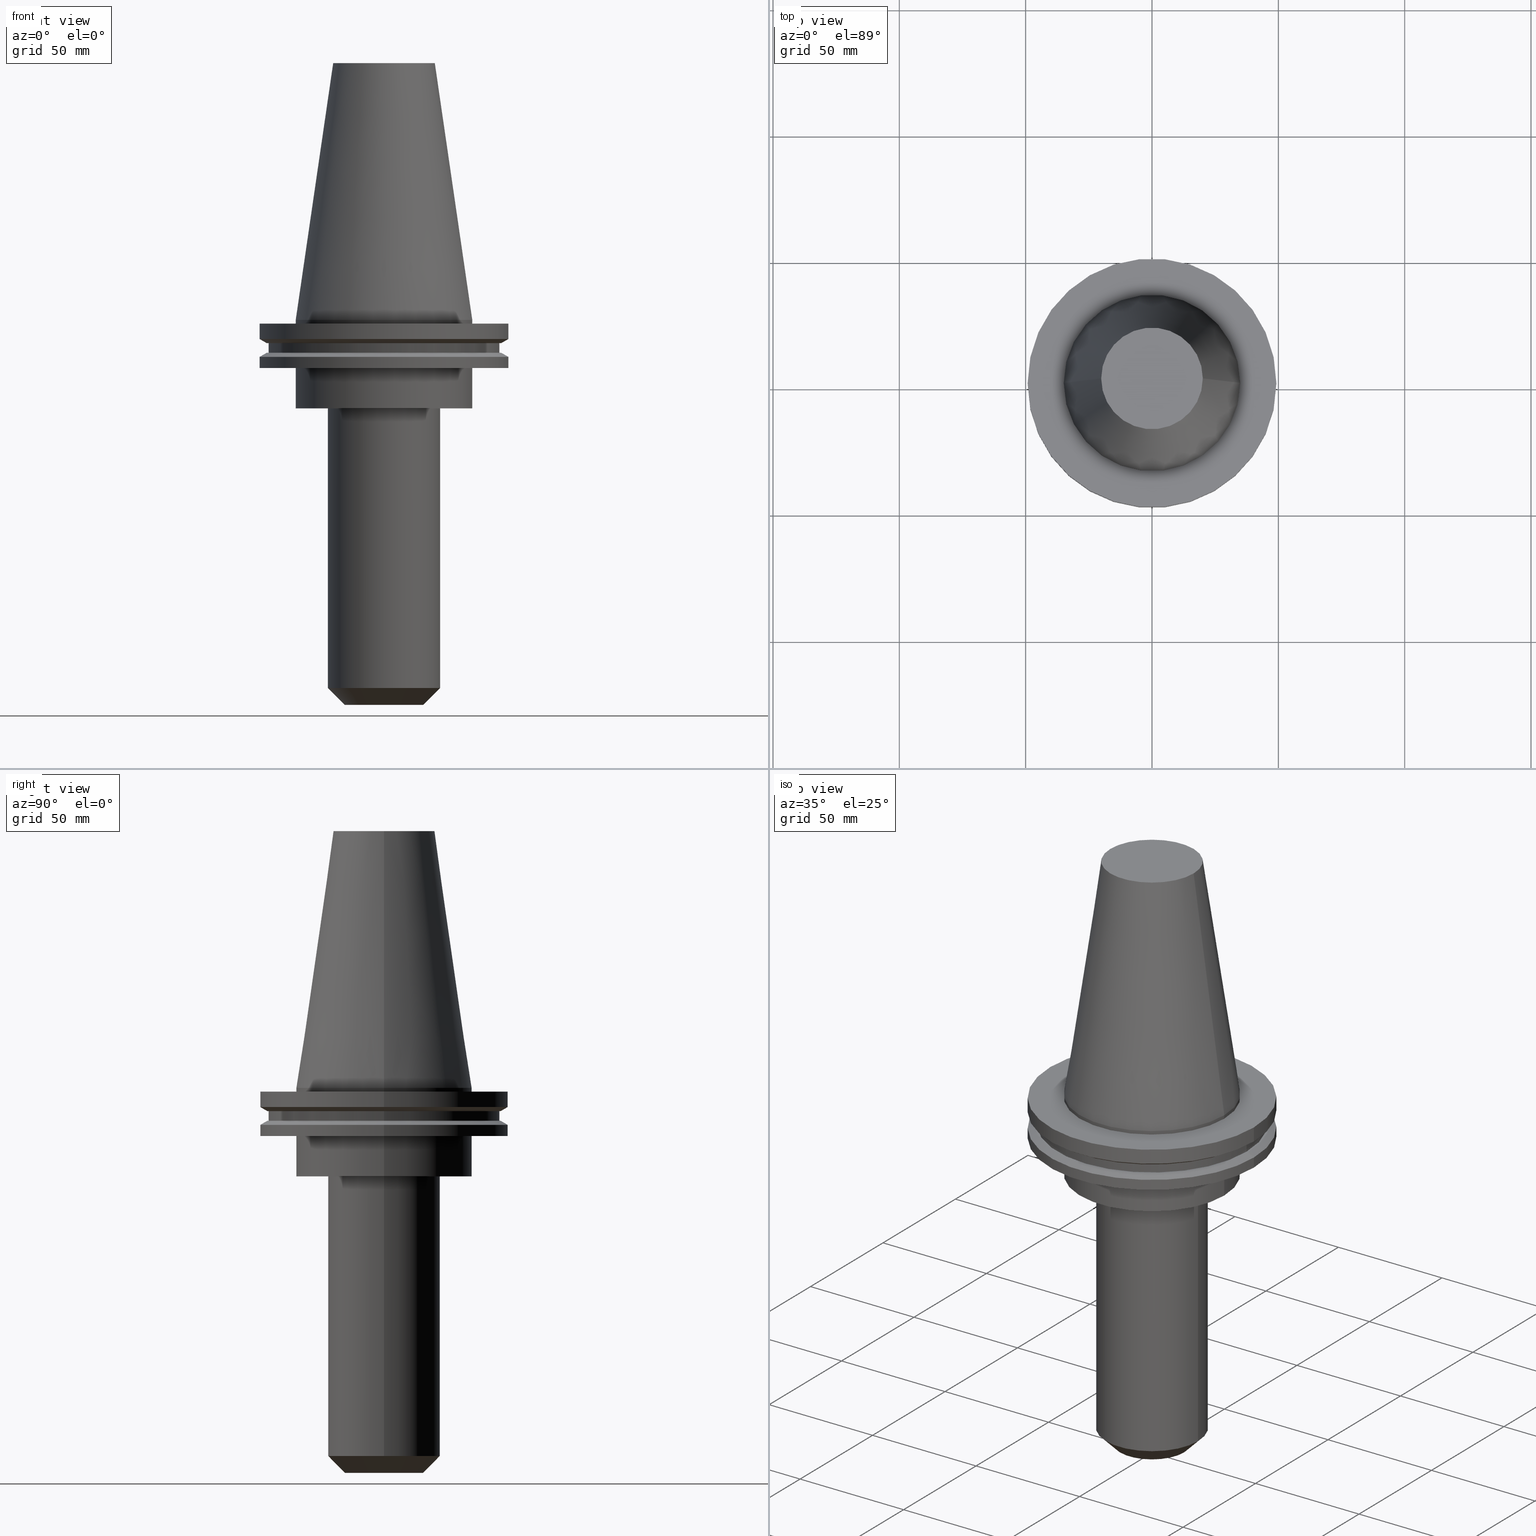
[diagram: canonical four-view strip — front | top / right | iso, engineering-drawing reading convention]
A machine part, canonical four-view strip (front | top / right | iso — engineering-drawing reading convention). The complete STEP part file that produces these views, byte-faithful:
ISO-10303-21;
HEADER;
FILE_DESCRIPTION (( 'STEP AP203' ),
    '1' );
FILE_NAME ('BCV50-EM_750-6.stp',
    '2022-03-03T16:45:13',
    ( '' ),
    ( '' ),
    'SwSTEP 2.0',
    'SolidWorks 2021',
    '' );
FILE_SCHEMA (( 'CONFIG_CONTROL_DESIGN' ));
ENDSEC;

DATA;
#1 = ORIENTED_EDGE ( 'NONE', *, *, #551, .T. ) ;
#2 = CC_DESIGN_PERSON_AND_ORGANIZATION_ASSIGNMENT ( #75, #481, ( #839 ) ) ;
#3 = CARTESIAN_POINT ( 'NONE',  ( 0.000000000000000000, 9.550000000000006040, -152.4000000000000057 ) ) ;
#4 = FACE_OUTER_BOUND ( 'NONE', #771, .T. ) ;
#5 = ORIENTED_EDGE ( 'NONE', *, *, #403, .F. ) ;
#6 = PLANE ( 'NONE',  #39 ) ;
#7 = APPROVAL_STATUS ( 'not_yet_approved' ) ;
#8 = DIRECTION ( 'NONE',  ( -0.000000000000000000, -0.000000000000000000, 1.000000000000000000 ) ) ;
#9 = ADVANCED_FACE ( 'NONE', ( #55 ), #345, .T. ) ;
#10 = AXIS2_PLACEMENT_3D ( 'NONE', #251, #737, #70 ) ;
#11 = CARTESIAN_POINT ( 'NONE',  ( 22.22500000000000497, 0.000000000000000000, -145.6999999999999318 ) ) ;
#12 = PERSON_AND_ORGANIZATION ( #175, #622 ) ;
#13 = CARTESIAN_POINT ( 'NONE',  ( 0.000000000000000000, 0.000000000000000000, -9.204999999999991189 ) ) ;
#14 = EDGE_CURVE ( 'NONE', #303, #104, #426, .T. ) ;
#15 = ORIENTED_EDGE ( 'NONE', *, *, #387, .T. ) ;
#16 = CARTESIAN_POINT ( 'NONE',  ( 45.64500000000000313, 0.000000000000000000, 101.5999999999999943 ) ) ;
#17 = DIRECTION ( 'NONE',  ( -0.000000000000000000, -0.000000000000000000, 1.000000000000000000 ) ) ;
#18 = ORIENTED_EDGE ( 'NONE', *, *, #34, .F. ) ;
#19 = CARTESIAN_POINT ( 'NONE',  ( 0.000000000000000000, 49.21499999999998920, -19.04999999999999716 ) ) ;
#20 = CARTESIAN_POINT ( 'NONE',  ( 0.000000000000000000, 0.000000000000000000, 0.000000000000000000 ) ) ;
#21 = VERTEX_POINT ( 'NONE', #142 ) ;
#22 = EDGE_CURVE ( 'NONE', #346, #312, #248, .T. ) ;
#23 = CIRCLE ( 'NONE', #825, 46.43919780457007818 ) ;
#24 = DIRECTION ( 'NONE',  ( 1.000000000000000000, 0.000000000000000000, 0.000000000000000000 ) ) ;
#25 = APPROVAL_DATE_TIME ( #206, #685 ) ;
#26 = DIRECTION ( 'NONE',  ( -0.000000000000000000, -0.000000000000000000, 1.000000000000000000 ) ) ;
#27 = AXIS2_PLACEMENT_3D ( 'NONE', #780, #720, #785 ) ;
#28 = EDGE_LOOP ( 'NONE', ( #653, #62, #287, #119 ) ) ;
#29 = DIRECTION ( 'NONE',  ( -0.000000000000000000, -0.000000000000000000, 1.000000000000000000 ) ) ;
#30 = CYLINDRICAL_SURFACE ( 'NONE', #133, 34.92499999999999716 ) ;
#31 = ORIENTED_EDGE ( 'NONE', *, *, #564, .F. ) ;
#32 = FACE_BOUND ( 'NONE', #92, .T. ) ;
#33 = LINE ( 'NONE', #840, #645 ) ;
#34 = EDGE_CURVE ( 'NONE', #21, #340, #405, .T. ) ;
#35 = ORIENTED_EDGE ( 'NONE', *, *, #445, .F. ) ;
#36 = VECTOR ( 'NONE', #606, 999.9999999999998863 ) ;
#37 = CIRCLE ( 'NONE', #520, 22.22500000000000497 ) ;
#38 = LINE ( 'NONE', #765, #309 ) ;
#39 = AXIS2_PLACEMENT_3D ( 'NONE', #3, #845, #734 ) ;
#40 = ORIENTED_EDGE ( 'NONE', *, *, #331, .T. ) ;
#41 = DIRECTION ( 'NONE',  ( -1.000000000000000000, 0.000000000000000000, -0.000000000000000000 ) ) ;
#42 = VERTEX_POINT ( 'NONE', #663 ) ;
#43 = ADVANCED_FACE ( 'NONE', ( #4 ), #255, .F. ) ;
#44 = FACE_OUTER_BOUND ( 'NONE', #315, .T. ) ;
#45 = EDGE_LOOP ( 'NONE', ( #573, #740 ) ) ;
#46 = ADVANCED_FACE ( 'NONE', ( #328 ), #671, .T. ) ;
#47 = CIRCLE ( 'NONE', #373, 20.10819343178871321 ) ;
#48 = DIRECTION ( 'NONE',  ( -0.000000000000000000, -0.000000000000000000, 1.000000000000000000 ) ) ;
#49 = ORIENTED_EDGE ( 'NONE', *, *, #827, .F. ) ;
#50 = CONICAL_SURFACE ( 'NONE', #580, 34.92499999999999005, 0.1448138465474119452 ) ;
#51 = DIRECTION ( 'NONE',  ( 1.000000000000000000, 0.000000000000000000, 0.000000000000000000 ) ) ;
#52 = ORIENTED_EDGE ( 'NONE', *, *, #102, .F. ) ;
#53 = CYLINDRICAL_SURFACE ( 'NONE', #364, 34.92499999999999716 ) ;
#54 = DIRECTION ( 'NONE',  ( -0.000000000000000000, -0.000000000000000000, 1.000000000000000000 ) ) ;
#55 = FACE_OUTER_BOUND ( 'NONE', #822, .T. ) ;
#56 = EDGE_CURVE ( 'NONE', #164, #71, #47, .T. ) ;
#57 = ORIENTED_EDGE ( 'NONE', *, *, #664, .T. ) ;
#58 = CARTESIAN_POINT ( 'NONE',  ( 0.000000000000000000, 0.000000000000000000, -13.05499999999999794 ) ) ;
#59 = VECTOR ( 'NONE', #128, 1000.000000000000000 ) ;
#60 = DIRECTION ( 'NONE',  ( -0.000000000000000000, -0.000000000000000000, 1.000000000000000000 ) ) ;
#61 = APPROVAL_PERSON_ORGANIZATION ( #269, #685, #755 ) ;
#62 = ORIENTED_EDGE ( 'NONE', *, *, #314, .T. ) ;
#63 = DIRECTION ( 'NONE',  ( 1.000000000000000000, 0.000000000000000000, 0.000000000000000000 ) ) ;
#64 = CARTESIAN_POINT ( 'NONE',  ( 0.000000000000000000, 0.000000000000000000, 0.000000000000000000 ) ) ;
#65 = DIRECTION ( 'NONE',  ( -1.000000000000000000, 0.000000000000000000, -0.000000000000000000 ) ) ;
#66 = ORIENTED_EDGE ( 'NONE', *, *, #240, .F. ) ;
#67 = ADVANCED_FACE ( 'NONE', ( #184, #532 ), #247, .F. ) ;
#68 = DIRECTION ( 'NONE',  ( 1.000000000000000000, 0.000000000000000000, 0.000000000000000000 ) ) ;
#69 = PERSON_AND_ORGANIZATION_ROLE ( 'design_owner' ) ;
#70 = DIRECTION ( 'NONE',  ( 1.000000000000000000, 0.000000000000000000, 0.000000000000000000 ) ) ;
#71 = VERTEX_POINT ( 'NONE', #381 ) ;
#72 = PRODUCT_DEFINITION_SHAPE ( 'NONE', 'NONE',  #769 ) ;
#73 = LINE ( 'NONE', #749, #783 ) ;
#74 = CC_DESIGN_PERSON_AND_ORGANIZATION_ASSIGNMENT ( #220, #562, ( #839 ) ) ;
#75 = PERSON_AND_ORGANIZATION ( #175, #622 ) ;
#76 = DIRECTION ( 'NONE',  ( -0.000000000000000000, -0.000000000000000000, 1.000000000000000000 ) ) ;
#77 = CIRCLE ( 'NONE', #673, 22.22499999999999432 ) ;
#78 = CIRCLE ( 'NONE', #483, 49.21499999999999631 ) ;
#79 = CIRCLE ( 'NONE', #230, 34.92499999999999716 ) ;
#80 = DIRECTION ( 'NONE',  ( -0.8660254037844273833, 1.060575238724893110E-16, 0.5000000000000195399 ) ) ;
#81 = DATE_AND_TIME ( #678, #348 ) ;
#82 = FACE_OUTER_BOUND ( 'NONE', #836, .T. ) ;
#83 = ORIENTED_EDGE ( 'NONE', *, *, #488, .F. ) ;
#84 = DIRECTION ( 'NONE',  ( 1.000000000000000000, 0.000000000000000000, 0.000000000000000000 ) ) ;
#85 = COORDINATED_UNIVERSAL_TIME_OFFSET ( 6, 0, .BEHIND. ) ;
#86 = CARTESIAN_POINT ( 'NONE',  ( -46.43919780457007818, 0.000000000000000000, -13.05499999999999794 ) ) ;
#87 = ORIENTED_EDGE ( 'NONE', *, *, #808, .T. ) ;
#88 = ADVANCED_FACE ( 'NONE', ( #528 ), #517, .T. ) ;
#89 = CARTESIAN_POINT ( 'NONE',  ( 22.22499999999999432, 0.000000000000000000, -35.04999999999999716 ) ) ;
#90 = COORDINATED_UNIVERSAL_TIME_OFFSET ( 6, 0, .BEHIND. ) ;
#91 = FACE_OUTER_BOUND ( 'NONE', #252, .T. ) ;
#92 = EDGE_LOOP ( 'NONE', ( #237, #437 ) ) ;
#93 = EDGE_CURVE ( 'NONE', #444, #477, #131, .T. ) ;
#94 = APPLICATION_CONTEXT ( 'configuration controlled 3d designs of mechanical parts and assemblies' ) ;
#95 = AXIS2_PLACEMENT_3D ( 'NONE', #795, #781, #325 ) ;
#96 = AXIS2_PLACEMENT_3D ( 'NONE', #566, #699, #823 ) ;
#97 = AXIS2_PLACEMENT_3D ( 'NONE', #768, #166, #41 ) ;
#98 = DIRECTION ( 'NONE',  ( -0.000000000000000000, -0.000000000000000000, 1.000000000000000000 ) ) ;
#99 = DIRECTION ( 'NONE',  ( -0.000000000000000000, -0.000000000000000000, 1.000000000000000000 ) ) ;
#100 = ORIENTED_EDGE ( 'NONE', *, *, #576, .F. ) ;
#101 = DIRECTION ( 'NONE',  ( 1.000000000000000000, 0.000000000000000000, 0.000000000000000000 ) ) ;
#102 = EDGE_CURVE ( 'NONE', #21, #710, #347, .T. ) ;
#103 = DIRECTION ( 'NONE',  ( 1.000000000000000000, 0.000000000000000000, 0.000000000000000000 ) ) ;
#104 = VERTEX_POINT ( 'NONE', #122 ) ;
#105 = CARTESIAN_POINT ( 'NONE',  ( 0.000000000000000000, 0.000000000000000000, -35.04999999999999716 ) ) ;
#106 = ORIENTED_EDGE ( 'NONE', *, *, #445, .T. ) ;
#107 = AXIS2_PLACEMENT_3D ( 'NONE', #844, #725, #65 ) ;
#108 = DIRECTION ( 'NONE',  ( 0.000000000000000000, 0.000000000000000000, -1.000000000000000000 ) ) ;
#109 = AXIS2_PLACEMENT_3D ( 'NONE', #111, #108, #293 ) ;
#110 = EDGE_LOOP ( 'NONE', ( #66, #706, #786, #568 ) ) ;
#111 = CARTESIAN_POINT ( 'NONE',  ( 0.000000000000000000, 0.000000000000000000, -14.65761014474876944 ) ) ;
#112 = VERTEX_POINT ( 'NONE', #467 ) ;
#113 = ADVANCED_FACE ( 'NONE', ( #590 ), #667, .T. ) ;
#114 = DIRECTION ( 'NONE',  ( -0.000000000000000000, -0.000000000000000000, 1.000000000000000000 ) ) ;
#115 = VERTEX_POINT ( 'NONE', #139 ) ;
#116 = CARTESIAN_POINT ( 'NONE',  ( -15.52499999999991154, 2.311520833390623949E-15, -152.4000000000000057 ) ) ;
#117 = CONICAL_SURFACE ( 'NONE', #733, 49.21499999999998920, 1.047197551196554333 ) ;
#118 = DIRECTION ( 'NONE',  ( -0.000000000000000000, -0.000000000000000000, 1.000000000000000000 ) ) ;
#119 = ORIENTED_EDGE ( 'NONE', *, *, #637, .T. ) ;
#120 = VECTOR ( 'NONE', #598, 1000.000000000000000 ) ;
#121 = DIRECTION ( 'NONE',  ( 0.000000000000000000, 0.000000000000000000, -1.000000000000000000 ) ) ;
#122 = CARTESIAN_POINT ( 'NONE',  ( 45.64500000000000313, 0.000000000000000000, -9.204999999999991189 ) ) ;
#123 = VERTEX_POINT ( 'NONE', #604 ) ;
#124 = DIRECTION ( 'NONE',  ( -0.000000000000000000, -0.000000000000000000, 1.000000000000000000 ) ) ;
#125 = CC_DESIGN_PERSON_AND_ORGANIZATION_ASSIGNMENT ( #683, #548, ( #582 ) ) ;
#126 = CARTESIAN_POINT ( 'NONE',  ( 0.000000000000000000, 0.000000000000000000, 0.000000000000000000 ) ) ;
#127 = ORIENTED_EDGE ( 'NONE', *, *, #718, .T. ) ;
#128 = DIRECTION ( 'NONE',  ( -0.000000000000000000, -0.000000000000000000, 1.000000000000000000 ) ) ;
#129 = VECTOR ( 'NONE', #646, 1000.000000000000000 ) ;
#130 = DIRECTION ( 'NONE',  ( 1.000000000000000000, 0.000000000000000000, 0.000000000000000000 ) ) ;
#131 = LINE ( 'NONE', #792, #620 ) ;
#132 = CIRCLE ( 'NONE', #570, 49.21499999999999631 ) ;
#133 = AXIS2_PLACEMENT_3D ( 'NONE', #207, #545, #689 ) ;
#134 = ORIENTED_EDGE ( 'NONE', *, *, #818, .F. ) ;
#135 = ADVANCED_FACE ( 'NONE', ( #265 ), #540, .T. ) ;
#136 = FACE_OUTER_BOUND ( 'NONE', #841, .T. ) ;
#137 = CARTESIAN_POINT ( 'NONE',  ( 0.000000000000000000, 0.000000000000000000, -19.04999999999999716 ) ) ;
#138 = UNCERTAINTY_MEASURE_WITH_UNIT (LENGTH_MEASURE( 1.000000000000000082E-05 ), #191, 'distance_accuracy_value', 'NONE');
#139 = CARTESIAN_POINT ( 'NONE',  ( 9.550000000000006040, 0.000000000000000000, -152.4000000000000057 ) ) ;
#140 = ORIENTED_EDGE ( 'NONE', *, *, #350, .F. ) ;
#141 = CARTESIAN_POINT ( 'NONE',  ( 0.000000000000000000, 0.000000000000000000, -35.04999999999999716 ) ) ;
#142 = CARTESIAN_POINT ( 'NONE',  ( -49.21499999999998920, 6.027099222003697037E-15, -19.04999999999999716 ) ) ;
#143 = VERTEX_POINT ( 'NONE', #354 ) ;
#144 = LINE ( 'NONE', #268, #36 ) ;
#145 = DIRECTION ( 'NONE',  ( -1.000000000000000000, 0.000000000000000000, 0.000000000000000000 ) ) ;
#146 = ORIENTED_EDGE ( 'NONE', *, *, #235, .T. ) ;
#147 = CIRCLE ( 'NONE', #633, 49.21499999999998920 ) ;
#148 = DIRECTION ( 'NONE',  ( -0.000000000000000000, -0.000000000000000000, 1.000000000000000000 ) ) ;
#149 = DIRECTION ( 'NONE',  ( -0.000000000000000000, -0.000000000000000000, 1.000000000000000000 ) ) ;
#150 = EDGE_CURVE ( 'NONE', #748, #406, #282, .T. ) ;
#151 = ORIENTED_EDGE ( 'NONE', *, *, #794, .T. ) ;
#152 = DIRECTION ( 'NONE',  ( -0.000000000000000000, -0.000000000000000000, 1.000000000000000000 ) ) ;
#153 = CALENDAR_DATE ( 2022, 3, 3 ) ;
#154 = FACE_OUTER_BOUND ( 'NONE', #110, .T. ) ;
#155 = EDGE_CURVE ( 'NONE', #696, #672, #559, .T. ) ;
#156 = ORIENTED_EDGE ( 'NONE', *, *, #488, .T. ) ;
#157 = DIRECTION ( 'NONE',  ( -0.000000000000000000, -0.000000000000000000, 1.000000000000000000 ) ) ;
#158 = CYLINDRICAL_SURFACE ( 'NONE', #228, 34.92499999999999005 ) ;
#159 = EDGE_LOOP ( 'NONE', ( #319, #397, #626, #355 ) ) ;
#160 = ADVANCED_FACE ( 'NONE', ( #751 ), #30, .T. ) ;
#161 = AXIS2_PLACEMENT_3D ( 'NONE', #820, #148, #415 ) ;
#162 = DIRECTION ( 'NONE',  ( -0.000000000000000000, -0.000000000000000000, 1.000000000000000000 ) ) ;
#163 = DIRECTION ( 'NONE',  ( -0.000000000000000000, -0.000000000000000000, 1.000000000000000000 ) ) ;
#164 = VERTEX_POINT ( 'NONE', #278 ) ;
#165 = ADVANCED_FACE ( 'NONE', ( #225 ), #492, .T. ) ;
#166 = DIRECTION ( 'NONE',  ( 0.000000000000000000, 0.000000000000000000, -1.000000000000000000 ) ) ;
#167 = VERTEX_POINT ( 'NONE', #86 ) ;
#168 = CARTESIAN_POINT ( 'NONE',  ( 0.000000000000000000, 0.000000000000000000, -7.602389855251287187 ) ) ;
#169 = ORIENTED_EDGE ( 'NONE', *, *, #245, .T. ) ;
#170 = AXIS2_PLACEMENT_3D ( 'NONE', #377, #254, #394 ) ;
#171 = DIRECTION ( 'NONE',  ( 1.000000000000000000, 0.000000000000000000, 0.000000000000000000 ) ) ;
#172 = ADVANCED_FACE ( 'NONE', ( #618, #811 ), #286, .F. ) ;
#173 = EDGE_LOOP ( 'NONE', ( #615, #194, #427, #5 ) ) ;
#174 = DIRECTION ( 'NONE',  ( -0.000000000000000000, -0.000000000000000000, 1.000000000000000000 ) ) ;
#175 = PERSON ( 'UNSPECIFIED', 'UNSPECIFIED', 'UNSPECIFIED', ('UNSPECIFIED'), ('UNSPECIFIED'), ('UNSPECIFIED') ) ;
#176 = ORIENTED_EDGE ( 'NONE', *, *, #541, .T. ) ;
#177 = DIRECTION ( 'NONE',  ( 1.000000000000000000, 0.000000000000000000, 0.000000000000000000 ) ) ;
#178 = ORIENTED_EDGE ( 'NONE', *, *, #827, .T. ) ;
#179 = ADVANCED_FACE ( 'NONE', ( #91 ), #117, .T. ) ;
#180 = AXIS2_PLACEMENT_3D ( 'NONE', #687, #98, #418 ) ;
#181 = CARTESIAN_POINT ( 'NONE',  ( -34.92499999999999716, 4.277078946022130887E-15, -19.04999999999999716 ) ) ;
#182 = VECTOR ( 'NONE', #367, 1000.000000000000000 ) ;
#183 = CARTESIAN_POINT ( 'NONE',  ( 0.000000000000000000, 0.000000000000000000, 0.000000000000000000 ) ) ;
#184 = FACE_OUTER_BOUND ( 'NONE', #213, .T. ) ;
#185 = AXIS2_PLACEMENT_3D ( 'NONE', #216, #152, #692 ) ;
#186 = AXIS2_PLACEMENT_3D ( 'NONE', #601, #262, #379 ) ;
#187 = DIRECTION ( 'NONE',  ( 1.000000000000000000, 0.000000000000000000, 0.000000000000000000 ) ) ;
#188 = DIRECTION ( 'NONE',  ( 1.000000000000000000, 0.000000000000000000, 0.000000000000000000 ) ) ;
#189 = ORIENTED_EDGE ( 'NONE', *, *, #474, .F. ) ;
#190 = DIRECTION ( 'NONE',  ( 1.000000000000000000, 0.000000000000000000, 0.000000000000000000 ) ) ;
#191 =( LENGTH_UNIT ( ) NAMED_UNIT ( * ) SI_UNIT ( .MILLI., .METRE. ) );
#192 = DIRECTION ( 'NONE',  ( 1.000000000000000000, 0.000000000000000000, 0.000000000000000000 ) ) ;
#193 = EDGE_CURVE ( 'NONE', #632, #223, #349, .T. ) ;
#194 = ORIENTED_EDGE ( 'NONE', *, *, #22, .T. ) ;
#195 = CARTESIAN_POINT ( 'NONE',  ( 9.550000000000000711, 0.000000000000000000, 0.000000000000000000 ) ) ;
#196 = DIRECTION ( 'NONE',  ( 1.000000000000000000, 0.000000000000000000, 0.000000000000000000 ) ) ;
#197 = CC_DESIGN_DATE_AND_TIME_ASSIGNMENT ( #353, #424, ( #769 ) ) ;
#198 = LOCAL_TIME ( 10, 45, 13.00000000000000000, #810 ) ;
#199 = EDGE_LOOP ( 'NONE', ( #703, #232, #368, #244 ) ) ;
#200 = CIRCLE ( 'NONE', #450, 20.10819343178871321 ) ;
#201 = CARTESIAN_POINT ( 'NONE',  ( 46.43919780457007818, 0.000000000000000000, -9.204999999999991189 ) ) ;
#202 = COORDINATED_UNIVERSAL_TIME_OFFSET ( 6, 0, .BEHIND. ) ;
#203 = VERTEX_POINT ( 'NONE', #275 ) ;
#204 = EDGE_LOOP ( 'NONE', ( #178, #218, #608, #649 ) ) ;
#205 = DIRECTION ( 'NONE',  ( 0.7071067811865489050, 0.000000000000000000, 0.7071067811865462405 ) ) ;
#206 = DATE_AND_TIME ( #617, #198 ) ;
#207 = CARTESIAN_POINT ( 'NONE',  ( 0.000000000000000000, 0.000000000000000000, 101.5999999999999943 ) ) ;
#208 = ORIENTED_EDGE ( 'NONE', *, *, #34, .T. ) ;
#209 = ADVANCED_FACE ( 'NONE', ( #154 ), #158, .T. ) ;
#210 = CARTESIAN_POINT ( 'NONE',  ( 0.000000000000000000, 0.000000000000000000, -1.499999999999987566 ) ) ;
#211 = CARTESIAN_POINT ( 'NONE',  ( 34.92499999999999005, 0.000000000000000000, 101.5999999999999943 ) ) ;
#212 = CONICAL_SURFACE ( 'NONE', #109, 49.21499999999998920, 1.047197551196554333 ) ;
#213 = EDGE_LOOP ( 'NONE', ( #753, #300 ) ) ;
#214 = AXIS2_PLACEMENT_3D ( 'NONE', #700, #747, #614 ) ;
#215 = AXIS2_PLACEMENT_3D ( 'NONE', #584, #530, #187 ) ;
#216 = CARTESIAN_POINT ( 'NONE',  ( 0.000000000000000000, 0.000000000000000000, -19.04999999999999716 ) ) ;
#217 = DIRECTION ( 'NONE',  ( -0.000000000000000000, -0.000000000000000000, 1.000000000000000000 ) ) ;
#218 = ORIENTED_EDGE ( 'NONE', *, *, #834, .T. ) ;
#219 = FACE_OUTER_BOUND ( 'NONE', #496, .T. ) ;
#220 = PERSON_AND_ORGANIZATION ( #175, #622 ) ;
#221 = LINE ( 'NONE', #756, #363 ) ;
#222 = EDGE_CURVE ( 'NONE', #112, #583, #554, .T. ) ;
#223 = VERTEX_POINT ( 'NONE', #814 ) ;
#224 = DIRECTION ( 'NONE',  ( -0.000000000000000000, -0.000000000000000000, 1.000000000000000000 ) ) ;
#225 = FACE_OUTER_BOUND ( 'NONE', #28, .T. ) ;
#226 = ORIENTED_EDGE ( 'NONE', *, *, #596, .F. ) ;
#227 = CC_DESIGN_PERSON_AND_ORGANIZATION_ASSIGNMENT ( #400, #69, ( #655 ) ) ;
#228 = AXIS2_PLACEMENT_3D ( 'NONE', #495, #26, #743 ) ;
#229 = CIRCLE ( 'NONE', #161, 9.550000000000006040 ) ;
#230 = AXIS2_PLACEMENT_3D ( 'NONE', #656, #665, #63 ) ;
#231 = DIRECTION ( 'NONE',  ( -0.000000000000000000, -0.000000000000000000, 1.000000000000000000 ) ) ;
#232 = ORIENTED_EDGE ( 'NONE', *, *, #222, .T. ) ;
#233 = CARTESIAN_POINT ( 'NONE',  ( 49.21499999999999631, 0.000000000000000000, -1.499999999999987566 ) ) ;
#234 = ORIENTED_EDGE ( 'NONE', *, *, #680, .F. ) ;
#235 = EDGE_CURVE ( 'NONE', #115, #444, #439, .T. ) ;
#236 = CARTESIAN_POINT ( 'NONE',  ( 0.000000000000000000, 0.000000000000000000, 101.5999999999999943 ) ) ;
#237 = ORIENTED_EDGE ( 'NONE', *, *, #637, .F. ) ;
#238 = APPROVAL_PERSON_ORGANIZATION ( #12, #336, #274 ) ;
#239 = DIRECTION ( 'NONE',  ( 1.000000000000000000, 0.000000000000000000, 0.000000000000000000 ) ) ;
#240 = EDGE_CURVE ( 'NONE', #632, #748, #221, .T. ) ;
#241 = ORIENTED_EDGE ( 'NONE', *, *, #705, .T. ) ;
#242 = VECTOR ( 'NONE', #713, 1000.000000000000000 ) ;
#243 = CARTESIAN_POINT ( 'NONE',  ( 46.43919780457007818, 0.000000000000000000, -9.204999999999991189 ) ) ;
#244 = ORIENTED_EDGE ( 'NONE', *, *, #433, .F. ) ;
#245 = EDGE_CURVE ( 'NONE', #406, #748, #643, .T. ) ;
#246 = CARTESIAN_POINT ( 'NONE',  ( 0.000000000000000000, 0.000000000000000000, -152.4000000000000057 ) ) ;
#247 = PLANE ( 'NONE',  #95 ) ;
#248 = CIRCLE ( 'NONE', #390, 46.43919780457007818 ) ;
#249 = CARTESIAN_POINT ( 'NONE',  ( 0.000000000000000000, 0.000000000000000000, 101.5999999999999943 ) ) ;
#250 = DIRECTION ( 'NONE',  ( 1.000000000000000000, 0.000000000000000000, 0.000000000000000000 ) ) ;
#251 = CARTESIAN_POINT ( 'NONE',  ( 0.000000000000000000, 0.000000000000000000, 101.5999999999999943 ) ) ;
#252 = EDGE_LOOP ( 'NONE', ( #441, #414, #654, #534 ) ) ;
#253 = PLANE ( 'NONE',  #846 ) ;
#254 = DIRECTION ( 'NONE',  ( -0.000000000000000000, -0.000000000000000000, 1.000000000000000000 ) ) ;
#255 = PLANE ( 'NONE',  #107 ) ;
#256 = ORIENTED_EDGE ( 'NONE', *, *, #511, .T. ) ;
#257 = CARTESIAN_POINT ( 'NONE',  ( 0.000000000000000000, 0.000000000000000000, -35.04999999999999716 ) ) ;
#258 = EDGE_CURVE ( 'NONE', #223, #406, #760, .T. ) ;
#259 = DIRECTION ( 'NONE',  ( -0.000000000000000000, -0.000000000000000000, 1.000000000000000000 ) ) ;
#260 = CARTESIAN_POINT ( 'NONE',  ( 0.000000000000000000, 0.000000000000000000, -9.204999999999991189 ) ) ;
#261 = VERTEX_POINT ( 'NONE', #821 ) ;
#262 = DIRECTION ( 'NONE',  ( -0.000000000000000000, -0.000000000000000000, 1.000000000000000000 ) ) ;
#263 = AXIS2_PLACEMENT_3D ( 'NONE', #126, #321, #461 ) ;
#264 = APPROVAL_ROLE ( '' ) ;
#265 = FACE_OUTER_BOUND ( 'NONE', #294, .T. ) ;
#266 = AXIS2_PLACEMENT_3D ( 'NONE', #557, #407, #742 ) ;
#267 = ORIENTED_EDGE ( 'NONE', *, *, #698, .T. ) ;
#268 = CARTESIAN_POINT ( 'NONE',  ( -34.92499999999999005, 0.000000000000000000, 0.000000000000000000 ) ) ;
#269 = PERSON_AND_ORGANIZATION ( #175, #622 ) ;
#270 = DIRECTION ( 'NONE',  ( 1.000000000000000000, 0.000000000000000000, 0.000000000000000000 ) ) ;
#271 = ORIENTED_EDGE ( 'NONE', *, *, #14, .F. ) ;
#272 = EDGE_CURVE ( 'NONE', #583, #372, #78, .T. ) ;
#273 = DIRECTION ( 'NONE',  ( -0.000000000000000000, -0.000000000000000000, 1.000000000000000000 ) ) ;
#274 = APPROVAL_ROLE ( '' ) ;
#275 = CARTESIAN_POINT ( 'NONE',  ( 49.21500000000000341, 0.000000000000000000, -7.602389855251287187 ) ) ;
#276 = ORIENTED_EDGE ( 'NONE', *, *, #56, .T. ) ;
#277 = DIRECTION ( 'NONE',  ( 0.000000000000000000, -0.000000000000000000, 1.000000000000000000 ) ) ;
#278 = CARTESIAN_POINT ( 'NONE',  ( 20.10819343178871321, 3.369811209154858606E-15, 101.5999999999999801 ) ) ;
#279 = CIRCLE ( 'NONE', #717, 22.22499999999999432 ) ;
#280 = EDGE_LOOP ( 'NONE', ( #49, #504 ) ) ;
#281 = CIRCLE ( 'NONE', #498, 45.64500000000000313 ) ;
#282 = CIRCLE ( 'NONE', #497, 34.92499999999999005 ) ;
#283 = CARTESIAN_POINT ( 'NONE',  ( 15.52499999999991154, 0.000000000000000000, -152.4000000000000057 ) ) ;
#284 = AXIS2_PLACEMENT_3D ( 'NONE', #453, #324, #651 ) ;
#285 = ADVANCED_FACE ( 'NONE', ( #82 ), #674, .T. ) ;
#286 = PLANE ( 'NONE',  #579 ) ;
#287 = ORIENTED_EDGE ( 'NONE', *, *, #155, .T. ) ;
#288 = DIRECTION ( 'NONE',  ( 1.000000000000000000, 0.000000000000000000, 0.000000000000000000 ) ) ;
#289 = PERSON_AND_ORGANIZATION_ROLE ( 'creator' ) ;
#290 = DIRECTION ( 'NONE',  ( 1.000000000000000000, 0.000000000000000000, 0.000000000000000000 ) ) ;
#291 = ORIENTED_EDGE ( 'NONE', *, *, #758, .T. ) ;
#292 = FACE_OUTER_BOUND ( 'NONE', #778, .T. ) ;
#293 = DIRECTION ( 'NONE',  ( -1.000000000000000000, 0.000000000000000000, 0.000000000000000000 ) ) ;
#294 = EDGE_LOOP ( 'NONE', ( #337, #636, #738, #489 ) ) ;
#295 = VECTOR ( 'NONE', #809, 1000.000000000000000 ) ;
#296 = VECTOR ( 'NONE', #487, 1000.000000000000000 ) ;
#297 = AXIS2_PLACEMENT_3D ( 'NONE', #813, #157, #739 ) ;
#298 = CIRCLE ( 'NONE', #180, 34.92499999999999005 ) ;
#299 = FACE_OUTER_BOUND ( 'NONE', #199, .T. ) ;
#300 = ORIENTED_EDGE ( 'NONE', *, *, #22, .F. ) ;
#301 = EDGE_CURVE ( 'NONE', #787, #812, #704, .T. ) ;
#302 = CARTESIAN_POINT ( 'NONE',  ( 0.000000000000000000, 0.000000000000000000, -145.6999999999999318 ) ) ;
#303 = VERTEX_POINT ( 'NONE', #824 ) ;
#304 = APPROVAL ( #7, 'UNSPECIFIED' ) ;
#305 = CARTESIAN_POINT ( 'NONE',  ( 34.92499999999999005, 4.277078946022130098E-15, 0.000000000000000000 ) ) ;
#306 = ORIENTED_EDGE ( 'NONE', *, *, #499, .T. ) ;
#307 = AXIS2_PLACEMENT_3D ( 'NONE', #482, #625, #684 ) ;
#308 = CIRCLE ( 'NONE', #170, 15.52499999999991154 ) ;
#309 = VECTOR ( 'NONE', #628, 1000.000000000000000 ) ;
#310 = LINE ( 'NONE', #712, #465 ) ;
#311 = EDGE_CURVE ( 'NONE', #525, #167, #849, .T. ) ;
#312 = VERTEX_POINT ( 'NONE', #243 ) ;
#313 = FACE_OUTER_BOUND ( 'NONE', #708, .T. ) ;
#314 = EDGE_CURVE ( 'NONE', #796, #696, #37, .T. ) ;
#315 = EDGE_LOOP ( 'NONE', ( #291, #722 ) ) ;
#316 = CARTESIAN_POINT ( 'NONE',  ( 46.43919780457007818, 5.857130358318725715E-15, -13.05499999999999794 ) ) ;
#317 = DIRECTION ( 'NONE',  ( 1.000000000000000000, 0.000000000000000000, 0.000000000000000000 ) ) ;
#318 = CARTESIAN_POINT ( 'NONE',  ( 0.000000000000000000, 0.000000000000000000, 101.5999999999999943 ) ) ;
#319 = ORIENTED_EDGE ( 'NONE', *, *, #602, .T. ) ;
#320 = LINE ( 'NONE', #195, #389 ) ;
#321 = DIRECTION ( 'NONE',  ( 0.000000000000000000, 0.000000000000000000, -1.000000000000000000 ) ) ;
#322 = EDGE_CURVE ( 'NONE', #366, #340, #147, .T. ) ;
#323 = DIRECTION ( 'NONE',  ( 1.000000000000000000, 0.000000000000000000, 0.000000000000000000 ) ) ;
#324 = DIRECTION ( 'NONE',  ( -0.000000000000000000, -0.000000000000000000, 1.000000000000000000 ) ) ;
#325 = DIRECTION ( 'NONE',  ( 1.000000000000000000, 0.000000000000000000, 0.000000000000000000 ) ) ;
#326 = VERTEX_POINT ( 'NONE', #828 ) ;
#327 = DIRECTION ( 'NONE',  ( -0.000000000000000000, -0.000000000000000000, 1.000000000000000000 ) ) ;
#328 = FACE_OUTER_BOUND ( 'NONE', #763, .T. ) ;
#329 = DIRECTION ( 'NONE',  ( -0.000000000000000000, -0.000000000000000000, 1.000000000000000000 ) ) ;
#330 = DIRECTION ( 'NONE',  ( 1.000000000000000000, 0.000000000000000000, 0.000000000000000000 ) ) ;
#331 = EDGE_CURVE ( 'NONE', #477, #261, #592, .T. ) ;
#332 = AXIS2_PLACEMENT_3D ( 'NONE', #791, #118, #317 ) ;
#333 = CONICAL_SURFACE ( 'NONE', #659, 15.52499999999991154, 0.7853981633974502774 ) ;
#334 = CYLINDRICAL_SURFACE ( 'NONE', #521, 22.22499999999999432 ) ;
#335 = DIRECTION ( 'NONE',  ( -0.000000000000000000, -0.000000000000000000, 1.000000000000000000 ) ) ;
#336 = APPROVAL ( #419, 'UNSPECIFIED' ) ;
#337 = ORIENTED_EDGE ( 'NONE', *, *, #222, .F. ) ;
#338 = FACE_BOUND ( 'NONE', #775, .T. ) ;
#339 = DIRECTION ( 'NONE',  ( 0.000000000000000000, 0.000000000000000000, -1.000000000000000000 ) ) ;
#340 = VERTEX_POINT ( 'NONE', #581 ) ;
#341 = ADVANCED_FACE ( 'NONE', ( #500 ), #50, .T. ) ;
#342 = CARTESIAN_POINT ( 'NONE',  ( 0.000000000000000000, 0.000000000000000000, 0.000000000000000000 ) ) ;
#343 = DATE_TIME_ROLE ( 'classification_date' ) ;
#344 = DIRECTION ( 'NONE',  ( -1.000000000000000000, 0.000000000000000000, -0.000000000000000000 ) ) ;
#345 = CONICAL_SURFACE ( 'NONE', #263, 34.92499999999999005, 0.1448138465474119452 ) ;
#346 = VERTEX_POINT ( 'NONE', #833 ) ;
#347 = CIRCLE ( 'NONE', #509, 49.21499999999998920 ) ;
#348 = LOCAL_TIME ( 10, 45, 13.00000000000000000, #90 ) ;
#349 = CIRCLE ( 'NONE', #214, 34.92499999999999005 ) ;
#350 = EDGE_CURVE ( 'NONE', #164, #406, #33, .T. ) ;
#351 = FACE_OUTER_BOUND ( 'NONE', #832, .T. ) ;
#352 = LOCAL_TIME ( 10, 45, 13.00000000000000000, #447 ) ;
#353 = DATE_AND_TIME ( #153, #732 ) ;
#354 = CARTESIAN_POINT ( 'NONE',  ( -22.22499999999999432, 2.721777511104992060E-15, -35.04999999999999716 ) ) ;
#355 = ORIENTED_EDGE ( 'NONE', *, *, #258, .F. ) ;
#356 = CARTESIAN_POINT ( 'NONE',  ( 34.92499999999999716, 0.000000000000000000, -35.04999999999999716 ) ) ;
#357 = CARTESIAN_POINT ( 'NONE',  ( 49.21499999999998920, 0.000000000000000000, -14.65761014474876944 ) ) ;
#358 = ORIENTED_EDGE ( 'NONE', *, *, #301, .T. ) ;
#359 = CARTESIAN_POINT ( 'NONE',  ( 49.21499999999998920, 6.027099222003697037E-15, -14.65761014474876944 ) ) ;
#360 = EDGE_CURVE ( 'NONE', #167, #340, #310, .T. ) ;
#361 = EDGE_LOOP ( 'NONE', ( #31, #512 ) ) ;
#362 = AXIS2_PLACEMENT_3D ( 'NONE', #257, #587, #793 ) ;
#363 = VECTOR ( 'NONE', #420, 1000.000000000000000 ) ;
#364 = AXIS2_PLACEMENT_3D ( 'NONE', #249, #376, #323 ) ;
#365 = FACE_BOUND ( 'NONE', #280, .T. ) ;
#366 = VERTEX_POINT ( 'NONE', #357 ) ;
#367 = DIRECTION ( 'NONE',  ( -0.000000000000000000, -0.000000000000000000, 1.000000000000000000 ) ) ;
#368 = ORIENTED_EDGE ( 'NONE', *, *, #691, .F. ) ;
#369 = ADVANCED_BREP_SHAPE_REPRESENTATION ( 'BCV50-EM_750-6', ( #790, #736 ), #392 ) ;
#370 = ADVANCED_FACE ( 'NONE', ( #365, #44 ), #635, .F. ) ;
#371 = CARTESIAN_POINT ( 'NONE',  ( -9.550000000000004263, 1.169537693185723150E-15, -152.4000000000000057 ) ) ;
#372 = VERTEX_POINT ( 'NONE', #233 ) ;
#373 = AXIS2_PLACEMENT_3D ( 'NONE', #855, #728, #330 ) ;
#374 = EDGE_CURVE ( 'NONE', #525, #366, #702, .T. ) ;
#375 = AXIS2_PLACEMENT_3D ( 'NONE', #759, #162, #101 ) ;
#376 = DIRECTION ( 'NONE',  ( -0.000000000000000000, -0.000000000000000000, 1.000000000000000000 ) ) ;
#377 = CARTESIAN_POINT ( 'NONE',  ( 0.000000000000000000, 0.000000000000000000, -152.4000000000000057 ) ) ;
#378 = ORIENTED_EDGE ( 'NONE', *, *, #564, .T. ) ;
#379 = DIRECTION ( 'NONE',  ( 1.000000000000000000, 0.000000000000000000, 0.000000000000000000 ) ) ;
#380 = DIRECTION ( 'NONE',  ( 0.000000000000000000, 0.000000000000000000, 1.000000000000000000 ) ) ;
#381 = CARTESIAN_POINT ( 'NONE',  ( -20.10819343178871321, 0.000000000000000000, 101.5999999999999801 ) ) ;
#382 = ORIENTED_EDGE ( 'NONE', *, *, #624, .T. ) ;
#383 = APPLICATION_CONTEXT ( 'configuration controlled 3d designs of mechanical parts and assemblies' ) ;
#384 = FACE_OUTER_BOUND ( 'NONE', #546, .T. ) ;
#385 =( NAMED_UNIT ( * ) PLANE_ANGLE_UNIT ( ) SI_UNIT ( $, .RADIAN. ) );
#386 = CARTESIAN_POINT ( 'NONE',  ( 0.000000000000000000, 0.000000000000000000, 101.5999999999999943 ) ) ;
#387 = EDGE_CURVE ( 'NONE', #796, #143, #38, .T. ) ;
#388 = ORIENTED_EDGE ( 'NONE', *, *, #193, .F. ) ;
#389 = VECTOR ( 'NONE', #593, 1000.000000000000000 ) ;
#390 = AXIS2_PLACEMENT_3D ( 'NONE', #260, #454, #594 ) ;
#391 = DIRECTION ( 'NONE',  ( 1.000000000000000000, 0.000000000000000000, 0.000000000000000000 ) ) ;
#392 =( GEOMETRIC_REPRESENTATION_CONTEXT ( 3 ) GLOBAL_UNCERTAINTY_ASSIGNED_CONTEXT ( ( #138 ) ) GLOBAL_UNIT_ASSIGNED_CONTEXT ( ( #191, #385, #657 ) ) REPRESENTATION_CONTEXT ( 'NONE', 'WORKASPACE' ) );
#393 = AXIS2_PLACEMENT_3D ( 'NONE', #318, #60, #192 ) ;
#394 = DIRECTION ( 'NONE',  ( 1.000000000000000000, 0.000000000000000000, 0.000000000000000000 ) ) ;
#395 = CARTESIAN_POINT ( 'NONE',  ( 0.000000000000000000, 0.000000000000000000, -19.04999999999999716 ) ) ;
#396 = CC_DESIGN_SECURITY_CLASSIFICATION ( #582, ( #839 ) ) ;
#397 = ORIENTED_EDGE ( 'NONE', *, *, #240, .T. ) ;
#398 = CIRCLE ( 'NONE', #27, 34.92499999999999716 ) ;
#399 = FACE_BOUND ( 'NONE', #721, .T. ) ;
#400 = PERSON_AND_ORGANIZATION ( #175, #622 ) ;
#401 = DIRECTION ( 'NONE',  ( 1.000000000000000000, 0.000000000000000000, 0.000000000000000000 ) ) ;
#402 = EDGE_LOOP ( 'NONE', ( #529, #681, #850, #417 ) ) ;
#403 = EDGE_CURVE ( 'NONE', #112, #203, #798, .T. ) ;
#404 = CARTESIAN_POINT ( 'NONE',  ( 49.21499999999998920, 0.000000000000000000, -19.04999999999999716 ) ) ;
#405 = LINE ( 'NONE', #524, #480 ) ;
#406 = VERTEX_POINT ( 'NONE', #305 ) ;
#407 = DIRECTION ( 'NONE',  ( -0.000000000000000000, -0.000000000000000000, 1.000000000000000000 ) ) ;
#408 = AXIS2_PLACEMENT_3D ( 'NONE', #719, #727, #51 ) ;
#409 = PRODUCT_RELATED_PRODUCT_CATEGORY ( 'detail', '', ( #655 ) ) ;
#410 = SECURITY_CLASSIFICATION_LEVEL ( 'unclassified' ) ;
#411 = DIRECTION ( 'NONE',  ( -0.000000000000000000, -0.000000000000000000, 1.000000000000000000 ) ) ;
#412 = AXIS2_PLACEMENT_3D ( 'NONE', #640, #174, #239 ) ;
#413 = CIRCLE ( 'NONE', #362, 9.550000000000000711 ) ;
#414 = ORIENTED_EDGE ( 'NONE', *, *, #374, .T. ) ;
#415 = DIRECTION ( 'NONE',  ( 1.000000000000000000, 0.000000000000000000, 0.000000000000000000 ) ) ;
#416 = CARTESIAN_POINT ( 'NONE',  ( 22.22499999999999432, 0.000000000000000000, 0.000000000000000000 ) ) ;
#417 = ORIENTED_EDGE ( 'NONE', *, *, #711, .T. ) ;
#418 = DIRECTION ( 'NONE',  ( 1.000000000000000000, 0.000000000000000000, 0.000000000000000000 ) ) ;
#419 = APPROVAL_STATUS ( 'not_yet_approved' ) ;
#420 = DIRECTION ( 'NONE',  ( -0.000000000000000000, -0.000000000000000000, 1.000000000000000000 ) ) ;
#421 = ORIENTED_EDGE ( 'NONE', *, *, #350, .T. ) ;
#422 = ADVANCED_FACE ( 'NONE', ( #577 ), #212, .T. ) ;
#423 = CARTESIAN_POINT ( 'NONE',  ( -34.92499999999999005, 4.277078946022130098E-15, -1.499999999999987566 ) ) ;
#424 = DATE_TIME_ROLE ( 'creation_date' ) ;
#425 = CARTESIAN_POINT ( 'NONE',  ( 0.000000000000000000, 0.000000000000000000, 0.000000000000000000 ) ) ;
#426 = CIRCLE ( 'NONE', #770, 45.64500000000000313 ) ;
#427 = ORIENTED_EDGE ( 'NONE', *, *, #460, .T. ) ;
#428 = CIRCLE ( 'NONE', #660, 15.52499999999991154 ) ;
#429 = AXIS2_PLACEMENT_3D ( 'NONE', #105, #48, #177 ) ;
#430 = FACE_OUTER_BOUND ( 'NONE', #159, .T. ) ;
#431 = CARTESIAN_POINT ( 'NONE',  ( -49.21499999999999631, 6.027099222003697826E-15, 101.5999999999999943 ) ) ;
#432 = ORIENTED_EDGE ( 'NONE', *, *, #803, .F. ) ;
#433 = EDGE_CURVE ( 'NONE', #203, #372, #574, .T. ) ;
#434 = DIRECTION ( 'NONE',  ( 0.1443082272672999988, 1.767266086135277066E-17, -0.9895327864921755756 ) ) ;
#435 = ORIENTED_EDGE ( 'NONE', *, *, #474, .T. ) ;
#436 = DIRECTION ( 'NONE',  ( 1.000000000000000000, 0.000000000000000000, 0.000000000000000000 ) ) ;
#437 = ORIENTED_EDGE ( 'NONE', *, *, #541, .F. ) ;
#438 = CIRCLE ( 'NONE', #185, 34.92499999999999716 ) ;
#439 = CIRCLE ( 'NONE', #835, 9.550000000000006040 ) ;
#440 = CARTESIAN_POINT ( 'NONE',  ( -15.52499999999991154, 1.901264155676255050E-15, -152.4000000000000057 ) ) ;
#441 = ORIENTED_EDGE ( 'NONE', *, *, #311, .F. ) ;
#442 = ADVANCED_FACE ( 'NONE', ( #299 ), #572, .T. ) ;
#443 = DIRECTION ( 'NONE',  ( -0.000000000000000000, -0.000000000000000000, 1.000000000000000000 ) ) ;
#444 = VERTEX_POINT ( 'NONE', #371 ) ;
#445 = EDGE_CURVE ( 'NONE', #468, #796, #777, .T. ) ;
#446 = DIRECTION ( 'NONE',  ( -0.000000000000000000, -0.000000000000000000, 1.000000000000000000 ) ) ;
#447 = COORDINATED_UNIVERSAL_TIME_OFFSET ( 6, 0, .BEHIND. ) ;
#448 = ORIENTED_EDGE ( 'NONE', *, *, #155, .F. ) ;
#449 = CIRCLE ( 'NONE', #186, 45.64500000000000313 ) ;
#450 = AXIS2_PLACEMENT_3D ( 'NONE', #478, #804, #616 ) ;
#451 = AXIS2_PLACEMENT_3D ( 'NONE', #236, #114, #171 ) ;
#452 = CYLINDRICAL_SURFACE ( 'NONE', #215, 49.21499999999998920 ) ;
#453 = CARTESIAN_POINT ( 'NONE',  ( 0.000000000000000000, 0.000000000000000000, -19.04999999999999716 ) ) ;
#454 = DIRECTION ( 'NONE',  ( -0.000000000000000000, -0.000000000000000000, 1.000000000000000000 ) ) ;
#455 = CARTESIAN_POINT ( 'NONE',  ( -9.550000000000000711, 1.169537693185722558E-15, -35.04999999999999716 ) ) ;
#456 = ADVANCED_FACE ( 'NONE', ( #384, #399 ), #6, .F. ) ;
#457 = ORIENTED_EDGE ( 'NONE', *, *, #460, .F. ) ;
#458 = VERTEX_POINT ( 'NONE', #181 ) ;
#459 = DIRECTION ( 'NONE',  ( 1.000000000000000000, 0.000000000000000000, 0.000000000000000000 ) ) ;
#460 = EDGE_CURVE ( 'NONE', #312, #203, #799, .T. ) ;
#461 = DIRECTION ( 'NONE',  ( -1.000000000000000000, 0.000000000000000000, 0.000000000000000000 ) ) ;
#462 = ORIENTED_EDGE ( 'NONE', *, *, #576, .T. ) ;
#463 = AXIS2_PLACEMENT_3D ( 'NONE', #425, #411, #693 ) ;
#464 = DIRECTION ( 'NONE',  ( -0.000000000000000000, -0.000000000000000000, 1.000000000000000000 ) ) ;
#465 = VECTOR ( 'NONE', #503, 1000.000000000000114 ) ;
#466 = MECHANICAL_CONTEXT ( 'NONE', #94, 'mechanical' ) ;
#467 = CARTESIAN_POINT ( 'NONE',  ( -49.21500000000000341, 6.027099222003699404E-15, -7.602389855251287187 ) ) ;
#468 = VERTEX_POINT ( 'NONE', #116 ) ;
#469 = LOCAL_TIME ( 10, 45, 13.00000000000000000, #85 ) ;
#470 = ADVANCED_FACE ( 'NONE', ( #313 ), #553, .T. ) ;
#471 = CARTESIAN_POINT ( 'NONE',  ( 0.000000000000000000, 0.000000000000000000, -152.4000000000000057 ) ) ;
#472 = APPROVAL_DATE_TIME ( #544, #336 ) ;
#473 = CARTESIAN_POINT ( 'NONE',  ( 0.000000000000000000, 0.000000000000000000, -9.204999999999991189 ) ) ;
#474 = EDGE_CURVE ( 'NONE', #787, #123, #79, .T. ) ;
#475 = FACE_OUTER_BOUND ( 'NONE', #757, .T. ) ;
#476 = CARTESIAN_POINT ( 'NONE',  ( 0.000000000000000000, 49.21499999999999631, -1.499999999999992895 ) ) ;
#477 = VERTEX_POINT ( 'NONE', #455 ) ;
#478 = CARTESIAN_POINT ( 'NONE',  ( 0.000000000000000000, 0.000000000000000000, 101.5999999999999801 ) ) ;
#479 = CIRCLE ( 'NONE', #746, 45.64500000000000313 ) ;
#480 = VECTOR ( 'NONE', #8, 1000.000000000000000 ) ;
#481 = PERSON_AND_ORGANIZATION_ROLE ( 'creator' ) ;
#482 = CARTESIAN_POINT ( 'NONE',  ( 0.000000000000000000, 0.000000000000000000, 0.000000000000000000 ) ) ;
#483 = AXIS2_PLACEMENT_3D ( 'NONE', #679, #163, #103 ) ;
#484 = ORIENTED_EDGE ( 'NONE', *, *, #102, .T. ) ;
#485 = CARTESIAN_POINT ( 'NONE',  ( -34.92499999999999005, 0.000000000000000000, 0.000000000000000000 ) ) ;
#486 = DATE_AND_TIME ( #491, #352 ) ;
#487 = DIRECTION ( 'NONE',  ( -0.000000000000000000, -0.000000000000000000, 1.000000000000000000 ) ) ;
#488 = EDGE_CURVE ( 'NONE', #123, #458, #779, .T. ) ;
#489 = ORIENTED_EDGE ( 'NONE', *, *, #272, .F. ) ;
#490 = CYLINDRICAL_SURFACE ( 'NONE', #518, 9.550000000000000711 ) ;
#491 = CALENDAR_DATE ( 2022, 3, 3 ) ;
#492 = CYLINDRICAL_SURFACE ( 'NONE', #307, 22.22499999999999432 ) ;
#493 = EDGE_LOOP ( 'NONE', ( #435, #156, #578, #621 ) ) ;
#494 = CYLINDRICAL_SURFACE ( 'NONE', #375, 34.92499999999999005 ) ;
#495 = CARTESIAN_POINT ( 'NONE',  ( 0.000000000000000000, 0.000000000000000000, 101.5999999999999943 ) ) ;
#496 = EDGE_LOOP ( 'NONE', ( #726, #52 ) ) ;
#497 = AXIS2_PLACEMENT_3D ( 'NONE', #20, #335, #290 ) ;
#498 = AXIS2_PLACEMENT_3D ( 'NONE', #847, #259, #735 ) ;
#499 = EDGE_CURVE ( 'NONE', #42, #826, #479, .T. ) ;
#500 = FACE_OUTER_BOUND ( 'NONE', #641, .T. ) ;
#501 = ORIENTED_EDGE ( 'NONE', *, *, #852, .F. ) ;
#502 = ADVANCED_FACE ( 'NONE', ( #136 ), #53, .T. ) ;
#503 = DIRECTION ( 'NONE',  ( -0.8660254037844169472, 0.000000000000000000, -0.5000000000000375255 ) ) ;
#504 = ORIENTED_EDGE ( 'NONE', *, *, #499, .F. ) ;
#505 = CARTESIAN_POINT ( 'NONE',  ( 34.92499999999999716, 0.000000000000000000, 101.5999999999999943 ) ) ;
#506 = ORIENTED_EDGE ( 'NONE', *, *, #852, .T. ) ;
#507 = VECTOR ( 'NONE', #513, 1000.000000000000000 ) ;
#508 = CC_DESIGN_APPROVAL ( #304, ( #769 ) ) ;
#509 = AXIS2_PLACEMENT_3D ( 'NONE', #395, #599, #196 ) ;
#510 = DIRECTION ( 'NONE',  ( 1.000000000000000000, 0.000000000000000000, 0.000000000000000000 ) ) ;
#511 = EDGE_CURVE ( 'NONE', #312, #346, #571, .T. ) ;
#512 = ORIENTED_EDGE ( 'NONE', *, *, #331, .F. ) ;
#513 = DIRECTION ( 'NONE',  ( -0.000000000000000000, -0.000000000000000000, 1.000000000000000000 ) ) ;
#514 = ORIENTED_EDGE ( 'NONE', *, *, #93, .F. ) ;
#515 = DIRECTION ( 'NONE',  ( -0.000000000000000000, -0.000000000000000000, 1.000000000000000000 ) ) ;
#516 = APPLICATION_PROTOCOL_DEFINITION ( 'international standard', 'config_control_design', 1994, #383 ) ;
#517 = CYLINDRICAL_SURFACE ( 'NONE', #393, 49.21499999999998920 ) ;
#518 = AXIS2_PLACEMENT_3D ( 'NONE', #342, #329, #682 ) ;
#519 = ADVANCED_FACE ( 'NONE', ( #788 ), #452, .T. ) ;
#520 = AXIS2_PLACEMENT_3D ( 'NONE', #302, #231, #638 ) ;
#521 = AXIS2_PLACEMENT_3D ( 'NONE', #669, #273, #675 ) ;
#522 = CARTESIAN_POINT ( 'NONE',  ( 0.000000000000000000, 34.92499999999999716, -35.04999999999999716 ) ) ;
#523 = LINE ( 'NONE', #800, #120 ) ;
#524 = CARTESIAN_POINT ( 'NONE',  ( -49.21499999999998920, 6.027099222003697037E-15, 101.5999999999999943 ) ) ;
#525 = VERTEX_POINT ( 'NONE', #316 ) ;
#526 = DIRECTION ( 'NONE',  ( 1.000000000000000000, 0.000000000000000000, 0.000000000000000000 ) ) ;
#527 = CARTESIAN_POINT ( 'NONE',  ( 34.92499999999999716, 0.000000000000000000, -19.04999999999999716 ) ) ;
#528 = FACE_OUTER_BOUND ( 'NONE', #714, .T. ) ;
#529 = ORIENTED_EDGE ( 'NONE', *, *, #374, .F. ) ;
#530 = DIRECTION ( 'NONE',  ( -0.000000000000000000, -0.000000000000000000, 1.000000000000000000 ) ) ;
#531 = APPLICATION_PROTOCOL_DEFINITION ( 'international standard', 'config_control_design', 1994, #94 ) ;
#532 = FACE_BOUND ( 'NONE', #766, .T. ) ;
#533 = ADVANCED_FACE ( 'NONE', ( #842 ), #333, .T. ) ;
#534 = ORIENTED_EDGE ( 'NONE', *, *, #360, .F. ) ;
#535 = AXIS2_PLACEMENT_3D ( 'NONE', #801, #806, #817 ) ;
#536 = FACE_OUTER_BOUND ( 'NONE', #361, .T. ) ;
#537 = CIRCLE ( 'NONE', #772, 49.21499999999998920 ) ;
#538 = AXIS2_PLACEMENT_3D ( 'NONE', #168, #443, #436 ) ;
#539 = CYLINDRICAL_SURFACE ( 'NONE', #716, 9.550000000000000711 ) ;
#540 = CYLINDRICAL_SURFACE ( 'NONE', #535, 49.21499999999999631 ) ;
#541 = EDGE_CURVE ( 'NONE', #143, #672, #279, .T. ) ;
#542 = ORIENTED_EDGE ( 'NONE', *, *, #794, .F. ) ;
#543 = DIRECTION ( 'NONE',  ( 0.000000000000000000, 0.000000000000000000, -1.000000000000000000 ) ) ;
#544 = DATE_AND_TIME ( #558, #469 ) ;
#545 = DIRECTION ( 'NONE',  ( -0.000000000000000000, -0.000000000000000000, 1.000000000000000000 ) ) ;
#546 = EDGE_LOOP ( 'NONE', ( #234, #542 ) ) ;
#547 = DIRECTION ( 'NONE',  ( 1.000000000000000000, 0.000000000000000000, 0.000000000000000000 ) ) ;
#548 = PERSON_AND_ORGANIZATION_ROLE ( 'classification_officer' ) ;
#549 = CARTESIAN_POINT ( 'NONE',  ( 0.000000000000000000, 0.000000000000000000, -152.4000000000000057 ) ) ;
#550 = EDGE_LOOP ( 'NONE', ( #630, #388 ) ) ;
#551 = EDGE_CURVE ( 'NONE', #104, #303, #449, .T. ) ;
#552 = FACE_OUTER_BOUND ( 'NONE', #173, .T. ) ;
#553 = CONICAL_SURFACE ( 'NONE', #634, 15.52499999999991154, 0.7853981633974502774 ) ;
#554 = LINE ( 'NONE', #431, #838 ) ;
#555 = CIRCLE ( 'NONE', #266, 49.21499999999998920 ) ;
#556 = ORIENTED_EDGE ( 'NONE', *, *, #314, .F. ) ;
#557 = CARTESIAN_POINT ( 'NONE',  ( 0.000000000000000000, 0.000000000000000000, -14.65761014474876944 ) ) ;
#558 = CALENDAR_DATE ( 2022, 3, 3 ) ;
#559 = LINE ( 'NONE', #416, #296 ) ;
#560 = ORIENTED_EDGE ( 'NONE', *, *, #834, .F. ) ;
#561 = DIRECTION ( 'NONE',  ( -0.000000000000000000, -0.000000000000000000, 1.000000000000000000 ) ) ;
#562 = PERSON_AND_ORGANIZATION_ROLE ( 'design_supplier' ) ;
#563 = CARTESIAN_POINT ( 'NONE',  ( 0.000000000000000000, 0.000000000000000000, -14.65761014474876944 ) ) ;
#564 = EDGE_CURVE ( 'NONE', #261, #477, #413, .T. ) ;
#565 = ORIENTED_EDGE ( 'NONE', *, *, #680, .T. ) ;
#566 = CARTESIAN_POINT ( 'NONE',  ( 0.000000000000000000, 34.92499999999999716, -35.04999999999999716 ) ) ;
#567 = DIRECTION ( 'NONE',  ( 0.000000000000000000, 0.000000000000000000, -1.000000000000000000 ) ) ;
#568 = ORIENTED_EDGE ( 'NONE', *, *, #150, .F. ) ;
#569 = CC_DESIGN_DATE_AND_TIME_ASSIGNMENT ( #81, #343, ( #582 ) ) ;
#570 = AXIS2_PLACEMENT_3D ( 'NONE', #210, #224, #24 ) ;
#571 = CIRCLE ( 'NONE', #408, 46.43919780457007818 ) ;
#572 = CYLINDRICAL_SURFACE ( 'NONE', #451, 49.21499999999999631 ) ;
#573 = ORIENTED_EDGE ( 'NONE', *, *, #691, .T. ) ;
#574 = LINE ( 'NONE', #709, #507 ) ;
#575 = ORIENTED_EDGE ( 'NONE', *, *, #664, .F. ) ;
#576 = EDGE_CURVE ( 'NONE', #115, #261, #320, .T. ) ;
#577 = FACE_OUTER_BOUND ( 'NONE', #402, .T. ) ;
#578 = ORIENTED_EDGE ( 'NONE', *, *, #808, .F. ) ;
#579 = AXIS2_PLACEMENT_3D ( 'NONE', #476, #610, #344 ) ;
#580 = AXIS2_PLACEMENT_3D ( 'NONE', #762, #567, #774 ) ;
#581 = CARTESIAN_POINT ( 'NONE',  ( -49.21499999999998920, 6.027099222003697037E-15, -14.65761014474876944 ) ) ;
#582 = SECURITY_CLASSIFICATION ( '', '', #410 ) ;
#583 = VERTEX_POINT ( 'NONE', #650 ) ;
#584 = CARTESIAN_POINT ( 'NONE',  ( 0.000000000000000000, 0.000000000000000000, 101.5999999999999943 ) ) ;
#585 = ORIENTED_EDGE ( 'NONE', *, *, #803, .T. ) ;
#586 = ADVANCED_FACE ( 'NONE', ( #536 ), #253, .F. ) ;
#587 = DIRECTION ( 'NONE',  ( -0.000000000000000000, -0.000000000000000000, 1.000000000000000000 ) ) ;
#588 = CARTESIAN_POINT ( 'NONE',  ( -22.22500000000000497, 2.721777511104993243E-15, -145.6999999999999318 ) ) ;
#589 = DESIGN_CONTEXT ( 'detailed design', #383, 'design' ) ;
#590 = FACE_OUTER_BOUND ( 'NONE', #204, .T. ) ;
#591 = EDGE_LOOP ( 'NONE', ( #35, #151, #241, #556 ) ) ;
#592 = CIRCLE ( 'NONE', #429, 9.550000000000000711 ) ;
#593 = DIRECTION ( 'NONE',  ( -0.000000000000000000, -0.000000000000000000, 1.000000000000000000 ) ) ;
#594 = DIRECTION ( 'NONE',  ( 1.000000000000000000, 0.000000000000000000, 0.000000000000000000 ) ) ;
#595 = ORIENTED_EDGE ( 'NONE', *, *, #56, .F. ) ;
#596 = EDGE_CURVE ( 'NONE', #203, #112, #767, .T. ) ;
#597 = CARTESIAN_POINT ( 'NONE',  ( 0.000000000000000000, 0.000000000000000000, -35.04999999999999716 ) ) ;
#598 = DIRECTION ( 'NONE',  ( -0.000000000000000000, -0.000000000000000000, 1.000000000000000000 ) ) ;
#599 = DIRECTION ( 'NONE',  ( -0.000000000000000000, -0.000000000000000000, 1.000000000000000000 ) ) ;
#600 = ORIENTED_EDGE ( 'NONE', *, *, #705, .F. ) ;
#601 = CARTESIAN_POINT ( 'NONE',  ( 0.000000000000000000, 0.000000000000000000, -9.204999999999991189 ) ) ;
#602 = EDGE_CURVE ( 'NONE', #223, #632, #298, .T. ) ;
#603 = PERSON_AND_ORGANIZATION ( #175, #622 ) ;
#604 = CARTESIAN_POINT ( 'NONE',  ( -34.92499999999999716, 4.277078946022130887E-15, -35.04999999999999716 ) ) ;
#605 = ORIENTED_EDGE ( 'NONE', *, *, #830, .T. ) ;
#606 = DIRECTION ( 'NONE',  ( -0.1443082272672999988, 0.000000000000000000, -0.9895327864921755756 ) ) ;
#607 = DIRECTION ( 'NONE',  ( 1.000000000000000000, 0.000000000000000000, 0.000000000000000000 ) ) ;
#608 = ORIENTED_EDGE ( 'NONE', *, *, #551, .F. ) ;
#609 = LINE ( 'NONE', #16, #295 ) ;
#610 = DIRECTION ( 'NONE',  ( 0.000000000000000000, 0.000000000000000000, -1.000000000000000000 ) ) ;
#611 = ORIENTED_EDGE ( 'NONE', *, *, #235, .F. ) ;
#612 = ADVANCED_FACE ( 'NONE', ( #351 ), #334, .T. ) ;
#613 = PLANE ( 'NONE',  #676 ) ;
#614 = DIRECTION ( 'NONE',  ( 1.000000000000000000, 0.000000000000000000, 0.000000000000000000 ) ) ;
#615 = ORIENTED_EDGE ( 'NONE', *, *, #624, .F. ) ;
#616 = DIRECTION ( 'NONE',  ( 1.000000000000000000, 0.000000000000000000, 0.000000000000000000 ) ) ;
#617 = CALENDAR_DATE ( 2022, 3, 3 ) ;
#618 = FACE_BOUND ( 'NONE', #550, .T. ) ;
#619 = APPROVAL_PERSON_ORGANIZATION ( #603, #304, #264 ) ;
#620 = VECTOR ( 'NONE', #848, 1000.000000000000000 ) ;
#621 = ORIENTED_EDGE ( 'NONE', *, *, #301, .F. ) ;
#622 = ORGANIZATION ( 'UNSPECIFIED', 'UNSPECIFIED', '' ) ;
#623 = CARTESIAN_POINT ( 'NONE',  ( 0.000000000000000000, 0.000000000000000000, -13.05499999999999794 ) ) ;
#624 = EDGE_CURVE ( 'NONE', #346, #112, #73, .T. ) ;
#625 = DIRECTION ( 'NONE',  ( -0.000000000000000000, -0.000000000000000000, 1.000000000000000000 ) ) ;
#626 = ORIENTED_EDGE ( 'NONE', *, *, #245, .F. ) ;
#627 = PLANE ( 'NONE',  #96 ) ;
#628 = DIRECTION ( 'NONE',  ( -0.000000000000000000, -0.000000000000000000, 1.000000000000000000 ) ) ;
#629 = CC_DESIGN_PERSON_AND_ORGANIZATION_ASSIGNMENT ( #688, #289, ( #769 ) ) ;
#630 = ORIENTED_EDGE ( 'NONE', *, *, #602, .F. ) ;
#631 = CARTESIAN_POINT ( 'NONE',  ( 0.000000000000000000, 0.000000000000000000, -14.65761014474876944 ) ) ;
#632 = VERTEX_POINT ( 'NONE', #423 ) ;
#633 = AXIS2_PLACEMENT_3D ( 'NONE', #631, #446, #510 ) ;
#634 = AXIS2_PLACEMENT_3D ( 'NONE', #471, #515, #391 ) ;
#635 = PLANE ( 'NONE',  #97 ) ;
#636 = ORIENTED_EDGE ( 'NONE', *, *, #403, .T. ) ;
#637 = EDGE_CURVE ( 'NONE', #672, #143, #77, .T. ) ;
#638 = DIRECTION ( 'NONE',  ( 1.000000000000000000, 0.000000000000000000, 0.000000000000000000 ) ) ;
#639 = ORIENTED_EDGE ( 'NONE', *, *, #14, .T. ) ;
#640 = CARTESIAN_POINT ( 'NONE',  ( 0.000000000000000000, 0.000000000000000000, -13.05499999999999794 ) ) ;
#641 = EDGE_LOOP ( 'NONE', ( #140, #744, #57, #690 ) ) ;
#642 = AXIS2_PLACEMENT_3D ( 'NONE', #386, #658, #401 ) ;
#643 = CIRCLE ( 'NONE', #463, 34.92499999999999005 ) ;
#644 = CONICAL_SURFACE ( 'NONE', #297, 46.43919780457007818, 1.047197551196575205 ) ;
#645 = VECTOR ( 'NONE', #434, 999.9999999999998863 ) ;
#646 = DIRECTION ( 'NONE',  ( 0.8660254037844273833, 0.000000000000000000, 0.5000000000000195399 ) ) ;
#647 = EDGE_CURVE ( 'NONE', #826, #104, #609, .T. ) ;
#648 = DIRECTION ( 'NONE',  ( -0.000000000000000000, -0.000000000000000000, 1.000000000000000000 ) ) ;
#649 = ORIENTED_EDGE ( 'NONE', *, *, #647, .F. ) ;
#650 = CARTESIAN_POINT ( 'NONE',  ( -49.21499999999999631, 6.027099222003697826E-15, -1.499999999999987566 ) ) ;
#651 = DIRECTION ( 'NONE',  ( 1.000000000000000000, 0.000000000000000000, 0.000000000000000000 ) ) ;
#652 = ADVANCED_FACE ( 'NONE', ( #475 ), #490, .F. ) ;
#653 = ORIENTED_EDGE ( 'NONE', *, *, #387, .F. ) ;
#654 = ORIENTED_EDGE ( 'NONE', *, *, #322, .T. ) ;
#655 = PRODUCT ( 'BCV50-EM_750-6', 'BCV50-EM_750-6', '', ( #466 ) ) ;
#656 = CARTESIAN_POINT ( 'NONE',  ( 0.000000000000000000, 0.000000000000000000, -35.04999999999999716 ) ) ;
#657 =( NAMED_UNIT ( * ) SI_UNIT ( $, .STERADIAN. ) SOLID_ANGLE_UNIT ( ) );
#658 = DIRECTION ( 'NONE',  ( -0.000000000000000000, -0.000000000000000000, 1.000000000000000000 ) ) ;
#659 = AXIS2_PLACEMENT_3D ( 'NONE', #246, #327, #68 ) ;
#660 = AXIS2_PLACEMENT_3D ( 'NONE', #816, #561, #84 ) ;
#661 = CARTESIAN_POINT ( 'NONE',  ( -34.92499999999999716, 4.277078946022130887E-15, 101.5999999999999943 ) ) ;
#662 = DIRECTION ( 'NONE',  ( 1.000000000000000000, 0.000000000000000000, 0.000000000000000000 ) ) ;
#663 = CARTESIAN_POINT ( 'NONE',  ( -45.64500000000000313, 5.589900314708094957E-15, -13.05499999999999794 ) ) ;
#664 = EDGE_CURVE ( 'NONE', #71, #748, #144, .T. ) ;
#665 = DIRECTION ( 'NONE',  ( -0.000000000000000000, -0.000000000000000000, 1.000000000000000000 ) ) ;
#666 = LINE ( 'NONE', #854, #242 ) ;
#667 = CYLINDRICAL_SURFACE ( 'NONE', #10, 45.64500000000000313 ) ;
#668 = ORIENTED_EDGE ( 'NONE', *, *, #752, .T. ) ;
#669 = CARTESIAN_POINT ( 'NONE',  ( 0.000000000000000000, 0.000000000000000000, 0.000000000000000000 ) ) ;
#670 = SHAPE_DEFINITION_REPRESENTATION ( #72, #369 ) ;
#671 = CYLINDRICAL_SURFACE ( 'NONE', #642, 45.64500000000000313 ) ;
#672 = VERTEX_POINT ( 'NONE', #89 ) ;
#673 = AXIS2_PLACEMENT_3D ( 'NONE', #141, #543, #547 ) ;
#674 = CONICAL_SURFACE ( 'NONE', #782, 46.43919780457007818, 1.047197551196575205 ) ;
#675 = DIRECTION ( 'NONE',  ( 1.000000000000000000, 0.000000000000000000, 0.000000000000000000 ) ) ;
#676 = AXIS2_PLACEMENT_3D ( 'NONE', #19, #277, #754 ) ;
#677 = AXIS2_PLACEMENT_3D ( 'NONE', #723, #124, #526 ) ;
#678 = CALENDAR_DATE ( 2022, 3, 3 ) ;
#679 = CARTESIAN_POINT ( 'NONE',  ( 0.000000000000000000, 0.000000000000000000, -1.499999999999987566 ) ) ;
#680 = EDGE_CURVE ( 'NONE', #326, #468, #428, .T. ) ;
#681 = ORIENTED_EDGE ( 'NONE', *, *, #758, .F. ) ;
#682 = DIRECTION ( 'NONE',  ( 1.000000000000000000, 0.000000000000000000, 0.000000000000000000 ) ) ;
#683 = PERSON_AND_ORGANIZATION ( #175, #622 ) ;
#684 = DIRECTION ( 'NONE',  ( 1.000000000000000000, 0.000000000000000000, 0.000000000000000000 ) ) ;
#685 = APPROVAL ( #750, 'UNSPECIFIED' ) ;
#686 = EDGE_LOOP ( 'NONE', ( #815, #807, #40, #100 ) ) ;
#687 = CARTESIAN_POINT ( 'NONE',  ( 0.000000000000000000, 0.000000000000000000, -1.499999999999987566 ) ) ;
#688 = PERSON_AND_ORGANIZATION ( #175, #622 ) ;
#689 = DIRECTION ( 'NONE',  ( 1.000000000000000000, 0.000000000000000000, 0.000000000000000000 ) ) ;
#690 = ORIENTED_EDGE ( 'NONE', *, *, #150, .T. ) ;
#691 = EDGE_CURVE ( 'NONE', #372, #583, #132, .T. ) ;
#692 = DIRECTION ( 'NONE',  ( 1.000000000000000000, 0.000000000000000000, 0.000000000000000000 ) ) ;
#693 = DIRECTION ( 'NONE',  ( 1.000000000000000000, 0.000000000000000000, 0.000000000000000000 ) ) ;
#694 = CC_DESIGN_APPROVAL ( #685, ( #582 ) ) ;
#695 = VECTOR ( 'NONE', #831, 1000.000000000000114 ) ;
#696 = VERTEX_POINT ( 'NONE', #11 ) ;
#697 = CC_DESIGN_APPROVAL ( #336, ( #839 ) ) ;
#698 = EDGE_CURVE ( 'NONE', #71, #164, #200, .T. ) ;
#699 = DIRECTION ( 'NONE',  ( 0.000000000000000000, -0.000000000000000000, 1.000000000000000000 ) ) ;
#700 = CARTESIAN_POINT ( 'NONE',  ( 0.000000000000000000, 0.000000000000000000, -1.499999999999987566 ) ) ;
#701 = EDGE_LOOP ( 'NONE', ( #18, #484, #585, #819 ) ) ;
#702 = LINE ( 'NONE', #359, #695 ) ;
#703 = ORIENTED_EDGE ( 'NONE', *, *, #596, .T. ) ;
#704 = LINE ( 'NONE', #505, #182 ) ;
#705 = EDGE_CURVE ( 'NONE', #326, #696, #745, .T. ) ;
#706 = ORIENTED_EDGE ( 'NONE', *, *, #193, .T. ) ;
#707 = DIRECTION ( 'NONE',  ( -0.7071067811865489050, 8.659560562354950115E-17, 0.7071067811865462405 ) ) ;
#708 = EDGE_LOOP ( 'NONE', ( #565, #106, #134, #600 ) ) ;
#709 = CARTESIAN_POINT ( 'NONE',  ( 49.21499999999999631, 0.000000000000000000, 101.5999999999999943 ) ) ;
#710 = VERTEX_POINT ( 'NONE', #404 ) ;
#711 = EDGE_CURVE ( 'NONE', #340, #366, #555, .T. ) ;
#712 = CARTESIAN_POINT ( 'NONE',  ( -49.21499999999998920, 0.000000000000000000, -14.65761014474876944 ) ) ;
#713 = DIRECTION ( 'NONE',  ( -0.000000000000000000, -0.000000000000000000, 1.000000000000000000 ) ) ;
#714 = EDGE_LOOP ( 'NONE', ( #605, #208, #761, #432 ) ) ;
#715 = VECTOR ( 'NONE', #99, 1000.000000000000000 ) ;
#716 = AXIS2_PLACEMENT_3D ( 'NONE', #64, #54, #130 ) ;
#717 = AXIS2_PLACEMENT_3D ( 'NONE', #597, #121, #190 ) ;
#718 = EDGE_CURVE ( 'NONE', #444, #115, #229, .T. ) ;
#719 = CARTESIAN_POINT ( 'NONE',  ( 0.000000000000000000, 0.000000000000000000, -9.204999999999991189 ) ) ;
#720 = DIRECTION ( 'NONE',  ( -0.000000000000000000, -0.000000000000000000, 1.000000000000000000 ) ) ;
#721 = EDGE_LOOP ( 'NONE', ( #146, #127 ) ) ;
#722 = ORIENTED_EDGE ( 'NONE', *, *, #311, .T. ) ;
#723 = CARTESIAN_POINT ( 'NONE',  ( 0.000000000000000000, 0.000000000000000000, -7.602389855251287187 ) ) ;
#724 = FACE_OUTER_BOUND ( 'NONE', #686, .T. ) ;
#725 = DIRECTION ( 'NONE',  ( 0.000000000000000000, 0.000000000000000000, -1.000000000000000000 ) ) ;
#726 = ORIENTED_EDGE ( 'NONE', *, *, #830, .F. ) ;
#727 = DIRECTION ( 'NONE',  ( -0.000000000000000000, -0.000000000000000000, 1.000000000000000000 ) ) ;
#728 = DIRECTION ( 'NONE',  ( -0.000000000000000000, -0.000000000000000000, 1.000000000000000000 ) ) ;
#729 = ADVANCED_FACE ( 'NONE', ( #219, #338 ), #613, .F. ) ;
#730 = ORIENTED_EDGE ( 'NONE', *, *, #818, .T. ) ;
#731 = CLOSED_SHELL ( 'NONE', ( #789, #470, #612, #776, #442, #285, #113, #179, #88, #160, #9, #764, #341, #43, #502, #729, #519, #422, #370, #46, #67, #741, #135, #172, #209, #165, #533, #456, #652, #586 ) ) ;
#732 = LOCAL_TIME ( 10, 45, 13.00000000000000000, #202 ) ;
#733 = AXIS2_PLACEMENT_3D ( 'NONE', #563, #339, #145 ) ;
#734 = DIRECTION ( 'NONE',  ( 1.000000000000000000, 0.000000000000000000, 0.000000000000000000 ) ) ;
#735 = DIRECTION ( 'NONE',  ( 1.000000000000000000, 0.000000000000000000, 0.000000000000000000 ) ) ;
#736 = AXIS2_PLACEMENT_3D ( 'NONE', #183, #380, #662 ) ;
#737 = DIRECTION ( 'NONE',  ( -0.000000000000000000, -0.000000000000000000, 1.000000000000000000 ) ) ;
#738 = ORIENTED_EDGE ( 'NONE', *, *, #433, .T. ) ;
#739 = DIRECTION ( 'NONE',  ( 1.000000000000000000, 0.000000000000000000, 0.000000000000000000 ) ) ;
#740 = ORIENTED_EDGE ( 'NONE', *, *, #272, .T. ) ;
#741 = ADVANCED_FACE ( 'NONE', ( #552 ), #644, .T. ) ;
#742 = DIRECTION ( 'NONE',  ( 1.000000000000000000, 0.000000000000000000, 0.000000000000000000 ) ) ;
#743 = DIRECTION ( 'NONE',  ( 1.000000000000000000, 0.000000000000000000, 0.000000000000000000 ) ) ;
#744 = ORIENTED_EDGE ( 'NONE', *, *, #698, .F. ) ;
#745 = LINE ( 'NONE', #283, #797 ) ;
#746 = AXIS2_PLACEMENT_3D ( 'NONE', #58, #464, #853 ) ;
#747 = DIRECTION ( 'NONE',  ( -0.000000000000000000, -0.000000000000000000, 1.000000000000000000 ) ) ;
#748 = VERTEX_POINT ( 'NONE', #485 ) ;
#749 = CARTESIAN_POINT ( 'NONE',  ( -46.43919780457007818, 5.687161494633754392E-15, -9.204999999999991189 ) ) ;
#750 = APPROVAL_STATUS ( 'not_yet_approved' ) ;
#751 = FACE_OUTER_BOUND ( 'NONE', #493, .T. ) ;
#752 = EDGE_CURVE ( 'NONE', #458, #812, #438, .T. ) ;
#753 = ORIENTED_EDGE ( 'NONE', *, *, #511, .F. ) ;
#754 = DIRECTION ( 'NONE',  ( 1.000000000000000000, 0.000000000000000000, 0.000000000000000000 ) ) ;
#755 = APPROVAL_ROLE ( '' ) ;
#756 = CARTESIAN_POINT ( 'NONE',  ( -34.92499999999999005, 4.277078946022130098E-15, 101.5999999999999943 ) ) ;
#757 = EDGE_LOOP ( 'NONE', ( #514, #611, #462, #378 ) ) ;
#758 = EDGE_CURVE ( 'NONE', #167, #525, #23, .T. ) ;
#759 = CARTESIAN_POINT ( 'NONE',  ( 0.000000000000000000, 0.000000000000000000, 101.5999999999999943 ) ) ;
#760 = LINE ( 'NONE', #211, #715 ) ;
#761 = ORIENTED_EDGE ( 'NONE', *, *, #322, .F. ) ;
#762 = CARTESIAN_POINT ( 'NONE',  ( 0.000000000000000000, 0.000000000000000000, 0.000000000000000000 ) ) ;
#763 = EDGE_LOOP ( 'NONE', ( #560, #306, #802, #271 ) ) ;
#764 = ADVANCED_FACE ( 'NONE', ( #292, #32 ), #627, .F. ) ;
#765 = CARTESIAN_POINT ( 'NONE',  ( -22.22499999999999432, 2.721777511104992060E-15, 0.000000000000000000 ) ) ;
#766 = EDGE_LOOP ( 'NONE', ( #1, #639 ) ) ;
#767 = CIRCLE ( 'NONE', #677, 49.21500000000000341 ) ;
#768 = CARTESIAN_POINT ( 'NONE',  ( 0.000000000000000000, 45.64500000000000313, -13.05499999999999794 ) ) ;
#769 = PRODUCT_DEFINITION ( 'UNKNOWN', '', #839, #589 ) ;
#770 = AXIS2_PLACEMENT_3D ( 'NONE', #473, #76, #188 ) ;
#771 = EDGE_LOOP ( 'NONE', ( #267, #276 ) ) ;
#772 = AXIS2_PLACEMENT_3D ( 'NONE', #137, #648, #250 ) ;
#773 = CIRCLE ( 'NONE', #332, 22.22500000000000497 ) ;
#774 = DIRECTION ( 'NONE',  ( -1.000000000000000000, 0.000000000000000000, 0.000000000000000000 ) ) ;
#775 = EDGE_LOOP ( 'NONE', ( #87, #668 ) ) ;
#776 = ADVANCED_FACE ( 'NONE', ( #430 ), #494, .T. ) ;
#777 = LINE ( 'NONE', #440, #851 ) ;
#778 = EDGE_LOOP ( 'NONE', ( #189, #501 ) ) ;
#779 = LINE ( 'NONE', #661, #59 ) ;
#780 = CARTESIAN_POINT ( 'NONE',  ( 0.000000000000000000, 0.000000000000000000, -35.04999999999999716 ) ) ;
#781 = DIRECTION ( 'NONE',  ( 0.000000000000000000, -0.000000000000000000, 1.000000000000000000 ) ) ;
#782 = AXIS2_PLACEMENT_3D ( 'NONE', #13, #17, #270 ) ;
#783 = VECTOR ( 'NONE', #80, 1000.000000000000000 ) ;
#784 = DIRECTION ( 'NONE',  ( 0.000000000000000000, -0.000000000000000000, 1.000000000000000000 ) ) ;
#785 = DIRECTION ( 'NONE',  ( 1.000000000000000000, 0.000000000000000000, 0.000000000000000000 ) ) ;
#786 = ORIENTED_EDGE ( 'NONE', *, *, #258, .T. ) ;
#787 = VERTEX_POINT ( 'NONE', #356 ) ;
#788 = FACE_OUTER_BOUND ( 'NONE', #701, .T. ) ;
#789 = ADVANCED_FACE ( 'NONE', ( #724 ), #539, .F. ) ;
#790 = MANIFOLD_SOLID_BREP ( 'EM', #731 ) ;
#791 = CARTESIAN_POINT ( 'NONE',  ( 0.000000000000000000, 0.000000000000000000, -145.6999999999999318 ) ) ;
#792 = CARTESIAN_POINT ( 'NONE',  ( -9.550000000000000711, 1.169537693185722558E-15, 0.000000000000000000 ) ) ;
#793 = DIRECTION ( 'NONE',  ( 1.000000000000000000, 0.000000000000000000, 0.000000000000000000 ) ) ;
#794 = EDGE_CURVE ( 'NONE', #468, #326, #308, .T. ) ;
#795 = CARTESIAN_POINT ( 'NONE',  ( 0.000000000000000000, 46.43919780457007818, -9.204999999999998295 ) ) ;
#796 = VERTEX_POINT ( 'NONE', #588 ) ;
#797 = VECTOR ( 'NONE', #205, 1000.000000000000000 ) ;
#798 = CIRCLE ( 'NONE', #538, 49.21500000000000341 ) ;
#799 = LINE ( 'NONE', #201, #129 ) ;
#800 = CARTESIAN_POINT ( 'NONE',  ( -45.64500000000000313, 5.589900314708094957E-15, 101.5999999999999943 ) ) ;
#801 = CARTESIAN_POINT ( 'NONE',  ( 0.000000000000000000, 0.000000000000000000, 101.5999999999999943 ) ) ;
#802 = ORIENTED_EDGE ( 'NONE', *, *, #647, .T. ) ;
#803 = EDGE_CURVE ( 'NONE', #710, #366, #666, .T. ) ;
#804 = DIRECTION ( 'NONE',  ( -0.000000000000000000, -0.000000000000000000, 1.000000000000000000 ) ) ;
#805 = APPROVAL_DATE_TIME ( #486, #304 ) ;
#806 = DIRECTION ( 'NONE',  ( -0.000000000000000000, -0.000000000000000000, 1.000000000000000000 ) ) ;
#807 = ORIENTED_EDGE ( 'NONE', *, *, #93, .T. ) ;
#808 = EDGE_CURVE ( 'NONE', #812, #458, #837, .T. ) ;
#809 = DIRECTION ( 'NONE',  ( -0.000000000000000000, -0.000000000000000000, 1.000000000000000000 ) ) ;
#810 = COORDINATED_UNIVERSAL_TIME_OFFSET ( 6, 0, .BEHIND. ) ;
#811 = FACE_OUTER_BOUND ( 'NONE', #45, .T. ) ;
#812 = VERTEX_POINT ( 'NONE', #527 ) ;
#813 = CARTESIAN_POINT ( 'NONE',  ( 0.000000000000000000, 0.000000000000000000, -9.204999999999991189 ) ) ;
#814 = CARTESIAN_POINT ( 'NONE',  ( 34.92499999999999005, 0.000000000000000000, -1.499999999999987566 ) ) ;
#815 = ORIENTED_EDGE ( 'NONE', *, *, #718, .F. ) ;
#816 = CARTESIAN_POINT ( 'NONE',  ( 0.000000000000000000, 0.000000000000000000, -152.4000000000000057 ) ) ;
#817 = DIRECTION ( 'NONE',  ( 1.000000000000000000, 0.000000000000000000, 0.000000000000000000 ) ) ;
#818 = EDGE_CURVE ( 'NONE', #696, #796, #773, .T. ) ;
#819 = ORIENTED_EDGE ( 'NONE', *, *, #711, .F. ) ;
#820 = CARTESIAN_POINT ( 'NONE',  ( 0.000000000000000000, 0.000000000000000000, -152.4000000000000057 ) ) ;
#821 = CARTESIAN_POINT ( 'NONE',  ( 9.550000000000000711, 0.000000000000000000, -35.04999999999999716 ) ) ;
#822 = EDGE_LOOP ( 'NONE', ( #595, #421, #169, #575 ) ) ;
#823 = DIRECTION ( 'NONE',  ( 1.000000000000000000, 0.000000000000000000, 0.000000000000000000 ) ) ;
#824 = CARTESIAN_POINT ( 'NONE',  ( -45.64500000000000313, 5.589900314708094957E-15, -9.204999999999991189 ) ) ;
#825 = AXIS2_PLACEMENT_3D ( 'NONE', #623, #29, #288 ) ;
#826 = VERTEX_POINT ( 'NONE', #843 ) ;
#827 = EDGE_CURVE ( 'NONE', #826, #42, #281, .T. ) ;
#828 = CARTESIAN_POINT ( 'NONE',  ( 15.52499999999991154, 0.000000000000000000, -152.4000000000000057 ) ) ;
#829 = ORIENTED_EDGE ( 'NONE', *, *, #752, .F. ) ;
#830 = EDGE_CURVE ( 'NONE', #710, #21, #537, .T. ) ;
#831 = DIRECTION ( 'NONE',  ( 0.8660254037844169472, 1.060575238724880168E-16, -0.5000000000000375255 ) ) ;
#832 = EDGE_LOOP ( 'NONE', ( #730, #15, #176, #448 ) ) ;
#833 = CARTESIAN_POINT ( 'NONE',  ( -46.43919780457007818, 5.857130358318727293E-15, -9.204999999999991189 ) ) ;
#834 = EDGE_CURVE ( 'NONE', #42, #303, #523, .T. ) ;
#835 = AXIS2_PLACEMENT_3D ( 'NONE', #549, #217, #607 ) ;
#836 = EDGE_LOOP ( 'NONE', ( #256, #382, #226, #457 ) ) ;
#837 = CIRCLE ( 'NONE', #284, 34.92499999999999716 ) ;
#838 = VECTOR ( 'NONE', #149, 1000.000000000000000 ) ;
#839 = PRODUCT_DEFINITION_FORMATION_WITH_SPECIFIED_SOURCE ( 'ANY', '', #655, .NOT_KNOWN. ) ;
#840 = CARTESIAN_POINT ( 'NONE',  ( 34.92499999999999005, 4.277078946022130098E-15, 0.000000000000000000 ) ) ;
#841 = EDGE_LOOP ( 'NONE', ( #83, #506, #358, #829 ) ) ;
#842 = FACE_OUTER_BOUND ( 'NONE', #591, .T. ) ;
#843 = CARTESIAN_POINT ( 'NONE',  ( 45.64500000000000313, 0.000000000000000000, -13.05499999999999794 ) ) ;
#844 = CARTESIAN_POINT ( 'NONE',  ( 0.000000000000000000, 20.10819343178871321, 101.5999999999999943 ) ) ;
#845 = DIRECTION ( 'NONE',  ( 0.000000000000000000, -0.000000000000000000, 1.000000000000000000 ) ) ;
#846 = AXIS2_PLACEMENT_3D ( 'NONE', #522, #784, #459 ) ;
#847 = CARTESIAN_POINT ( 'NONE',  ( 0.000000000000000000, 0.000000000000000000, -13.05499999999999794 ) ) ;
#848 = DIRECTION ( 'NONE',  ( -0.000000000000000000, -0.000000000000000000, 1.000000000000000000 ) ) ;
#849 = CIRCLE ( 'NONE', #412, 46.43919780457007818 ) ;
#850 = ORIENTED_EDGE ( 'NONE', *, *, #360, .T. ) ;
#851 = VECTOR ( 'NONE', #707, 1000.000000000000000 ) ;
#852 = EDGE_CURVE ( 'NONE', #123, #787, #398, .T. ) ;
#853 = DIRECTION ( 'NONE',  ( 1.000000000000000000, 0.000000000000000000, 0.000000000000000000 ) ) ;
#854 = CARTESIAN_POINT ( 'NONE',  ( 49.21499999999998920, 0.000000000000000000, 101.5999999999999943 ) ) ;
#855 = CARTESIAN_POINT ( 'NONE',  ( 0.000000000000000000, 0.000000000000000000, 101.5999999999999801 ) ) ;
ENDSEC;
END-ISO-10303-21;
